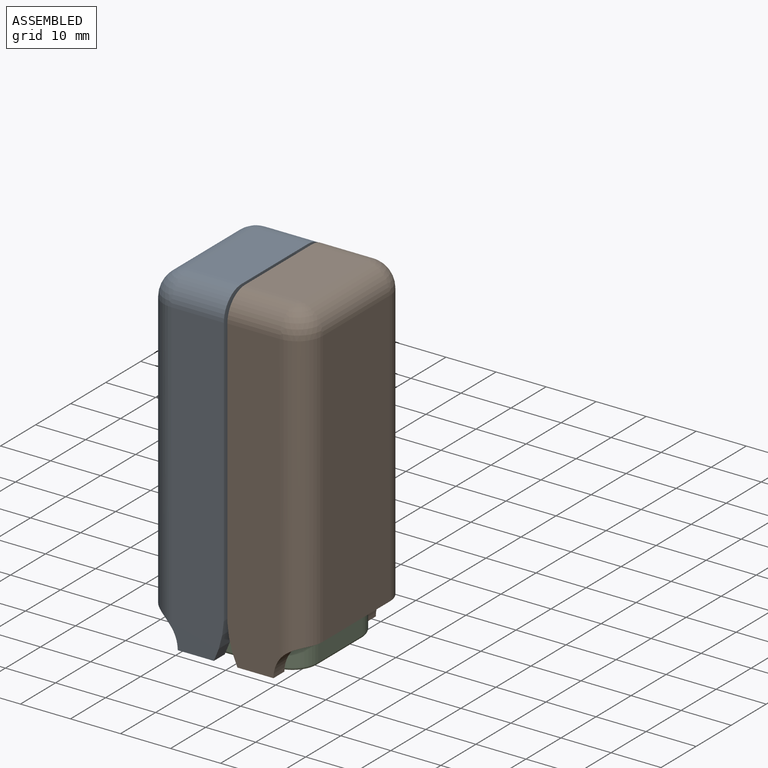
[diagram: assembled view]
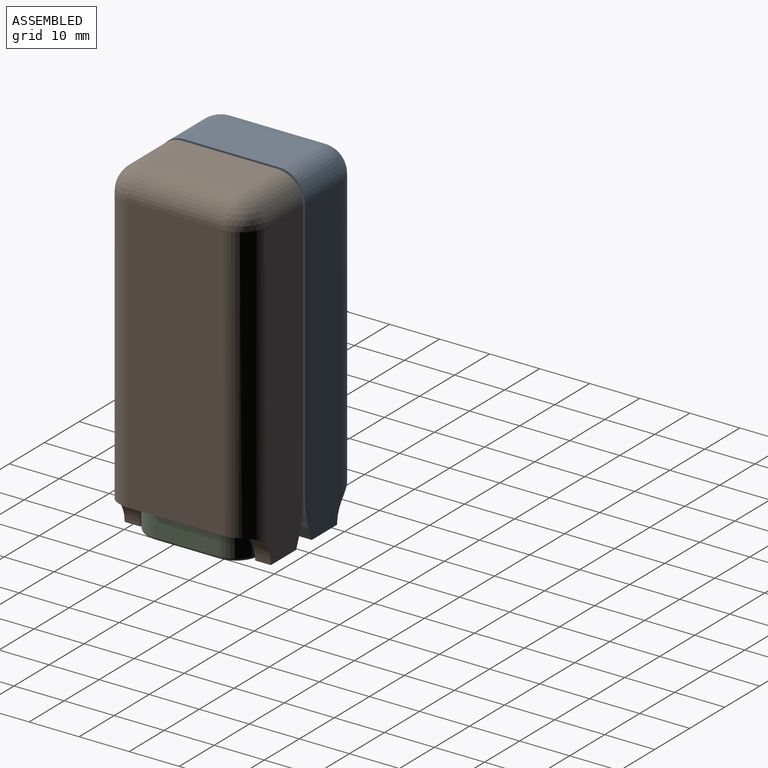
[diagram: assembled view, second angle]
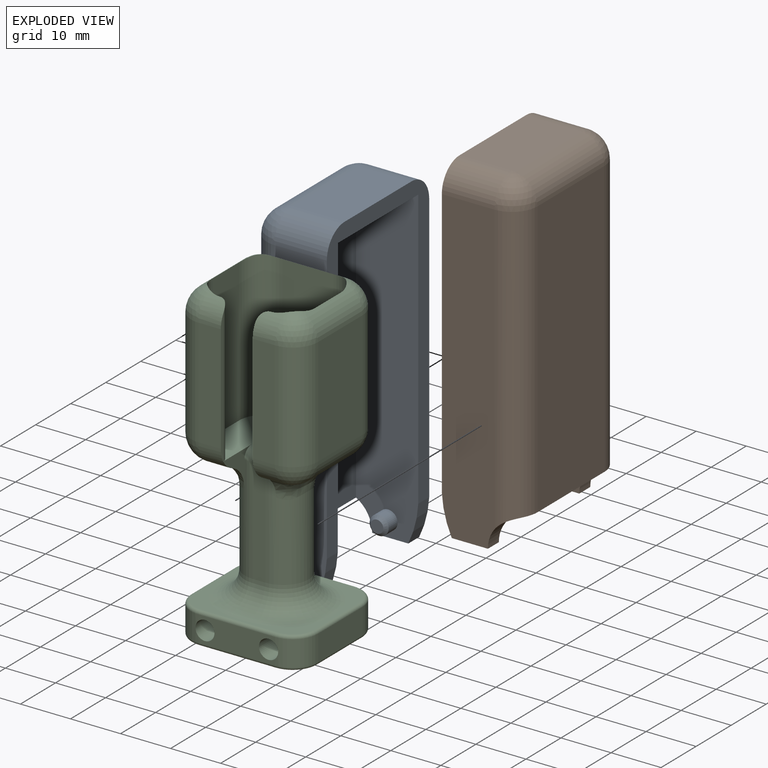
[diagram: exploded view]
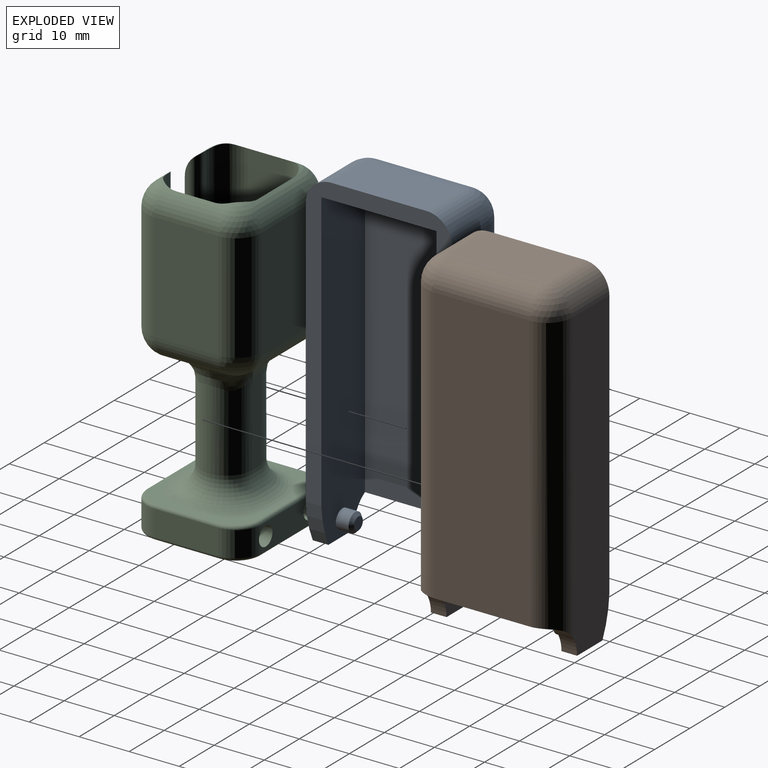
[diagram: exploded view, second angle]
ASSEMBLY  parts=3 mates=2
PART A: 27 faces, bbox 15.6x29.2x66.7 mm
  f0: plane 7.21x3.12mm, normal (0,0,-1), area 22.5mm2, adj f1,f2,f3,f9
  f1: cylinder r=20.13mm len=7.73mm, axis (0,1,0), area 25.1mm2, adj f0,f2,f3,f8
  f2: plane 61.6x10.48mm, normal (0,1,0), area 636.5mm2, adj f0,f1,f8,f9,f20,f21
  f3: plane 63.55x12.43mm, normal (0,-1,0), area 760.5mm2, adj f0,f1,f4,f5,f8,f9,f10
  f4: plane 58.02x22.96mm, normal (-1,0,0), area 1332.3mm2, adj f3,f5,f9,f16
  f5: plane 22.96x12.43mm, normal (0,0,-1), area 285.5mm2, adj f3,f4,f8,f16
  f6: plane 55.25x19.05mm, normal (1,0,0), area 1052.4mm2, adj f9,f21,f23,f24
  f7: plane 19.05x10.48mm, normal (0,0,1), area 199.6mm2, adj f8,f20,f23,f26
  f8: plane 58.95x29.21mm, normal (-1,0,0), area 429mm2, adj f1,f2,f3,f5,f7,f14,f15,f16
  f9: cylinder r=6.35mm len=29.21mm, axis (0,1,0), area 125.9mm2, adj f0,f2,f3,f4,f6,f13,f15,f16
  f10: cylinder r=1.91mm len=3.81mm, axis (0,1,0), area 30.4mm2, adj f3,f12
  f11: plane 2.54x2.54mm, normal (0,-1,0), area 5.1mm2, adj f12
  f12: cone r=1.27mm half-angle=45deg, axis (0,1,0), area 9mm2, adj f10,f11
  f13: plane 7.21x3.12mm, normal (0,0,-1), area 22.5mm2, adj f9,f14,f15,f16
  f14: cylinder r=20.13mm len=7.73mm, axis (0,-1,0), area 25.1mm2, adj f8,f13,f15,f16
  f15: plane 61.6x10.48mm, normal (0,-1,0), area 636.5mm2, adj f8,f9,f13,f14,f24,f26
  f16: plane 63.55x12.43mm, normal (0,1,0), area 760.5mm2, adj f4,f5,f8,f9,f13,f14,f17
  f17: cylinder r=1.91mm len=3.81mm, axis (0,-1,0), area 30.4mm2, adj f16,f19
  f18: plane 2.54x2.54mm, normal (0,1,0), area 5.1mm2, adj f19
  f19: cone r=1.27mm half-angle=45deg, axis (0,-1,0), area 9mm2, adj f17,f18
  f20: cylinder r=5.08mm len=10.48mm, axis (-1,0,0), area 83.6mm2, adj f2,f7,f8,f22
  f21: cylinder r=5.08mm len=57.79mm, axis (0,0,1), area 445mm2, adj f2,f6,f9,f22
  f22: sphere r=5.08mm, area 40.5mm2, adj f20,f21,f23
  f23: cylinder r=5.08mm len=19.05mm, axis (0,1,0), area 152mm2, adj f6,f7,f22,f25
  f24: cylinder r=5.08mm len=57.79mm, axis (0,0,1), area 445mm2, adj f6,f9,f15,f25
  f25: sphere r=5.08mm, area 40.5mm2, adj f23,f24,f26
  f26: cylinder r=5.08mm len=10.48mm, axis (-1,0,0), area 83.6mm2, adj f7,f8,f15,f25
PART B: same geometry as A
PART C: 93 faces, bbox 26.9x24.4x63.8 mm
  f0: plane 8.88x7.82mm, normal (1,0,0), area 16.7mm2, adj f15,f26,f43,f53,f68
  f1: plane 26.52x0.64mm, normal (-1,0,0), area 15.9mm2, adj f2,f35,f44,f56
  f2: plane 21.59x4.45mm, normal (0,-1,0), area 96mm2, adj f1,f30,f35,f44
  f3: plane 28.53x0mm, normal (0,1,0), area 0.1mm2, adj f15,f44,f56,f73
  f4: plane 24.13x21.59mm, normal (0,0,1), area 128.1mm2, adj f69,f70,f71,f72,f77,f78,f79,f80
  f5: plane 12.7x5.08mm, normal (-1,0,0), area 64.5mm2, adj f32,f34,f83,f86
  f6: plane 24.13x21.59mm, normal (0,0,-1), area 504mm2, adj f85,f86,f87,f88,f89,f90,f91,f92
  f7: plane 12.7x5.08mm, normal (1,0,0), area 64.5mm2, adj f31,f33,f78,f91
  f8: plane 15.24x5.08mm, normal (0,-1,0), area 57.1mm2, adj f21,f22,f33,f34,f79,f87
  f9: plane 15.24x5.08mm, normal (0,1,0), area 57.1mm2, adj f21,f22,f31,f32,f82,f90
  f10: plane 21.59x12.7mm, normal (-1,0,0), area 274.2mm2, adj f27,f29,f41,f50
  f11: plane 21.59x12.7mm, normal (1,0,0), area 274.2mm2, adj f28,f30,f37,f46
  f12: plane 21.59x4.45mm, normal (0,-1,0), area 96mm2, adj f23,f29,f43,f52
  f13: plane 21.59x15.24mm, normal (0,1,0), area 329mm2, adj f27,f28,f39,f48
  f14: plane 28.53x7.62mm, normal (1,0,0), area 217.4mm2, adj f15,f50,f75,f76
  f15: plane 20.32x19.64mm, normal (0,0,1), area 303.7mm2, adj f0,f3,f14,f16,f17,f18,f24,f35
  f16: plane 28.53x7.62mm, normal (-1,0,0), area 217.4mm2, adj f15,f46,f73,f74
  f17: plane 28.53x0mm, normal (0,1,0), area 0.1mm2, adj f15,f52,f57,f76
  f18: plane 28.53x10.16mm, normal (0,-1,0), area 289.9mm2, adj f15,f48,f74,f75
  f19: plane 20.96x2.54mm, normal (0,-1,0), area 53.2mm2, adj f25,f26,f54,f70
  f20: plane 15.98x2.54mm, normal (0,1,0), area 40.6mm2, adj f25,f26,f63,f71
  f21: cylinder r=1.91mm len=22.86mm, axis (0,-1,0), area 273.6mm2, adj f8,f9,f32,f34
  f22: cylinder r=1.91mm len=22.86mm, axis (0,-1,0), area 273.6mm2, adj f8,f9,f31,f33
  f23: plane 26.52x0.64mm, normal (1,0,0), area 15.9mm2, adj f12,f43,f52,f57
  f24: plane 8.88x7.82mm, normal (-1,0,0), area 16.7mm2, adj f15,f25,f35,f55,f58
  f25: cylinder r=5.08mm len=20.96mm, axis (0,0,-1), area 260mm2, adj f19,f20,f24,f55,f58,f59,f60,f61
  f26: cylinder r=5.08mm len=20.96mm, axis (0,0,1), area 260mm2, adj f0,f19,f20,f53,f64,f65,f66,f67
  f27: cylinder r=5.08mm len=21.59mm, axis (0,0,-1), area 172.3mm2, adj f10,f13,f40,f49
  f28: cylinder r=5.08mm len=21.59mm, axis (0,0,1), area 172.3mm2, adj f11,f13,f38,f47
  f29: cylinder r=5.08mm len=21.59mm, axis (0,0,1), area 172.3mm2, adj f10,f12,f42,f51
  f30: cylinder r=5.08mm len=21.59mm, axis (0,0,-1), area 172.3mm2, adj f2,f11,f36,f45
  f31: cylinder r=5.08mm len=5.08mm, axis (0,0,1), area 39.3mm2, adj f7,f9,f22,f80,f92
  f32: cylinder r=5.08mm len=5.08mm, axis (0,0,-1), area 39.3mm2, adj f5,f9,f21,f84,f88
  f33: cylinder r=5.08mm len=5.08mm, axis (0,0,-1), area 39.3mm2, adj f7,f8,f22,f77,f89
  f34: cylinder r=5.08mm len=5.08mm, axis (0,0,1), area 39.3mm2, adj f5,f8,f21,f81,f85
  f35: cylinder r=5.08mm len=5.02mm, axis (-1,0,0), area 29.1mm2, adj f1,f2,f15,f24,f36,f56,f58
  f36: sphere r=5.08mm, area 40mm2, adj f30,f35,f37,f59
  f37: cylinder r=5.08mm len=12.7mm, axis (0,1,0), area 81.3mm2, adj f11,f36,f38,f60
  f38: sphere r=5.08mm, area 40mm2, adj f28,f37,f39,f61
  f39: cylinder r=5.08mm len=15.24mm, axis (1,0,0), area 99.2mm2, adj f13,f38,f40,f62,f63,f64
  f40: sphere r=5.08mm, area 40mm2, adj f27,f39,f41,f65
  f41: cylinder r=5.08mm len=12.7mm, axis (0,1,0), area 81.3mm2, adj f10,f40,f42,f66
  f42: sphere r=5.08mm, area 40.2mm2, adj f29,f41,f43,f67
  f43: cylinder r=5.08mm len=5.02mm, axis (-1,0,0), area 29.1mm2, adj f0,f12,f15,f23,f42,f57,f68
  f44: cylinder r=5.08mm len=4.73mm, axis (1,0,0), area 23.3mm2, adj f1,f2,f3,f45,f56,f73
  f45: sphere r=5.08mm, area 37.7mm2, adj f30,f44,f46,f73
  f46: cylinder r=5.08mm len=12.7mm, axis (0,1,0), area 69.5mm2, adj f11,f16,f45,f47,f73,f74
  f47: sphere r=5.08mm, area 37.7mm2, adj f28,f46,f48,f74
  f48: cylinder r=5.08mm len=15.24mm, axis (-1,0,0), area 83mm2, adj f13,f18,f47,f49,f74,f75
  f49: sphere r=5.08mm, area 37.7mm2, adj f27,f48,f50,f75
  f50: cylinder r=5.08mm len=12.7mm, axis (0,1,0), area 69.5mm2, adj f10,f14,f49,f51,f75,f76
  f51: sphere r=5.08mm, area 37.7mm2, adj f29,f50,f52,f76
  f52: cylinder r=5.08mm len=4.73mm, axis (1,0,0), area 23.3mm2, adj f12,f17,f23,f51,f57,f76
  f53: torus R=3.18mm, axis (0,0,-1), area 6.6mm2, adj f0,f15,f26,f54
  f54: cylinder r=1.9mm len=2.54mm, axis (1,0,0), area 7.6mm2, adj f15,f19,f53,f55
  f55: torus R=3.18mm, axis (0,0,-1), area 6.6mm2, adj f15,f24,f25,f54
  f56: cylinder r=1.9mm len=28.53mm, axis (0,0,1), area 83.5mm2, adj f1,f3,f15,f35,f44
  f57: cylinder r=1.9mm len=28.53mm, axis (0,0,-1), area 83.5mm2, adj f15,f17,f23,f43,f52
  f58: bspline ~7.15x5.44mm, area 17.7mm2, adj f24,f25,f35,f59
  f59: bspline ~5.24x4.84mm, area 6.5mm2, adj f25,f36,f58,f60
  f60: bspline ~15.5x5.46mm, area 59.8mm2, adj f25,f37,f59,f61
  f61: bspline ~5.24x4.84mm, area 6.5mm2, adj f25,f38,f60,f62
  f62: bspline ~10.02x5.46mm, area 29.9mm2, adj f25,f39,f61,f63
  f63: cylinder r=5.08mm len=4.71mm, axis (1,0,0), area 15.3mm2, adj f20,f39,f62,f64
  f64: bspline ~10.02x5.46mm, area 29.9mm2, adj f26,f39,f63,f65
  f65: bspline ~5.24x4.84mm, area 6.5mm2, adj f26,f40,f64,f66
  f66: bspline ~15.5x5.46mm, area 59.8mm2, adj f26,f41,f65,f67
  f67: bspline ~5.24x4.84mm, area 6.5mm2, adj f26,f42,f66,f68
  f68: bspline ~7.15x5.44mm, area 17.7mm2, adj f0,f26,f43,f67
  f69: torus R=10.16mm, axis (0,0,-1), area 173.6mm2, adj f4,f25,f70,f71
  f70: cylinder r=5.08mm len=5.08mm, axis (-1,0,0), area 20.3mm2, adj f4,f19,f69,f72
  f71: cylinder r=5.08mm len=5.08mm, axis (1,0,0), area 20.3mm2, adj f4,f20,f69,f72
  f72: torus R=10.16mm, axis (0,0,-1), area 173.6mm2, adj f4,f26,f70,f71
  f73: cylinder r=5.08mm len=28.86mm, axis (0,0,1), area 229.4mm2, adj f3,f15,f16,f44,f45,f46
  f74: cylinder r=5.08mm len=28.86mm, axis (0,0,-1), area 229.4mm2, adj f15,f16,f18,f46,f47,f48
  f75: cylinder r=5.08mm len=28.86mm, axis (0,0,1), area 229.4mm2, adj f14,f15,f18,f48,f49,f50
  f76: cylinder r=5.08mm len=28.86mm, axis (0,0,-1), area 229.4mm2, adj f14,f15,f17,f50,f51,f52
  f77: torus R=4.45mm, axis (0,0,-1), area 7.6mm2, adj f4,f33,f78,f79
  f78: cylinder r=0.64mm len=12.7mm, axis (0,1,0), area 12.7mm2, adj f4,f7,f77,f80
  f79: cylinder r=0.64mm len=15.24mm, axis (1,0,0), area 15.2mm2, adj f4,f8,f77,f81
  f80: torus R=4.45mm, axis (0,0,-1), area 7.6mm2, adj f4,f31,f78,f82
  f81: torus R=4.45mm, axis (0,0,-1), area 7.6mm2, adj f4,f34,f79,f83
  f82: cylinder r=0.64mm len=15.24mm, axis (-1,0,0), area 15.2mm2, adj f4,f9,f80,f84
  f83: cylinder r=0.64mm len=12.7mm, axis (0,1,0), area 12.7mm2, adj f4,f5,f81,f84
  f84: torus R=4.45mm, axis (0,0,-1), area 7.6mm2, adj f4,f32,f82,f83
  f85: torus R=4.45mm, axis (0,0,1), area 7.6mm2, adj f6,f34,f86,f87
  f86: cylinder r=0.64mm len=12.7mm, axis (0,1,0), area 12.7mm2, adj f5,f6,f85,f88
  f87: cylinder r=0.64mm len=15.24mm, axis (-1,0,0), area 15.2mm2, adj f6,f8,f85,f89
  f88: torus R=4.45mm, axis (0,0,1), area 7.6mm2, adj f6,f32,f86,f90
  f89: torus R=4.45mm, axis (0,0,1), area 7.6mm2, adj f6,f33,f87,f91
  f90: cylinder r=0.64mm len=15.24mm, axis (1,0,0), area 15.2mm2, adj f6,f9,f88,f92
  f91: cylinder r=0.64mm len=12.7mm, axis (0,1,0), area 12.7mm2, adj f6,f7,f89,f92
  f92: torus R=4.45mm, axis (0,0,1), area 7.6mm2, adj f6,f31,f90,f91
PLACE A rot(axis=(0,0,1),180deg) t=(0.13,-5.65,7.18)mm
PLACE B rot(axis=(0,1,0.01),0deg) t=(0.13,-5.54,7.18)mm
PLACE C t=(0.13,-5.59,7.18)mm fixed
MATE revolute A.f10 <-> C.f21  axis (0,-1,0) through (-6.22,5.84,-21.39)mm
MATE revolute B.f10 <-> C.f22  axis (0,1,0) through (6.48,-17.02,-21.39)mm
